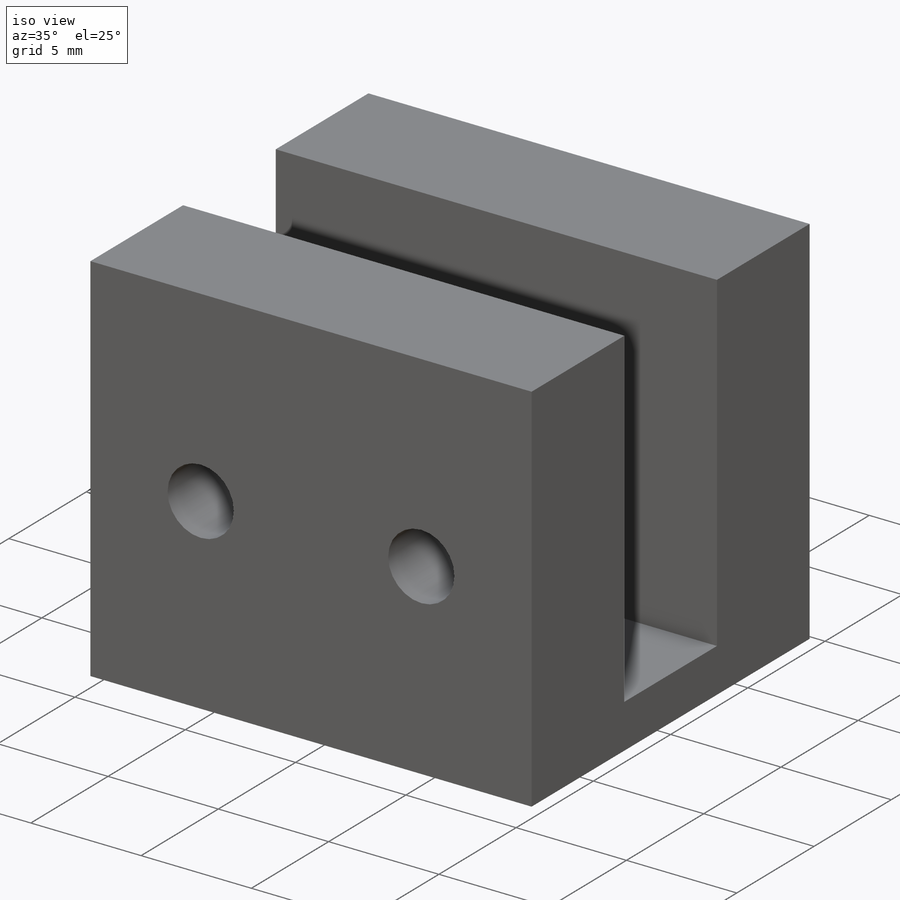
[diagram: iso view]
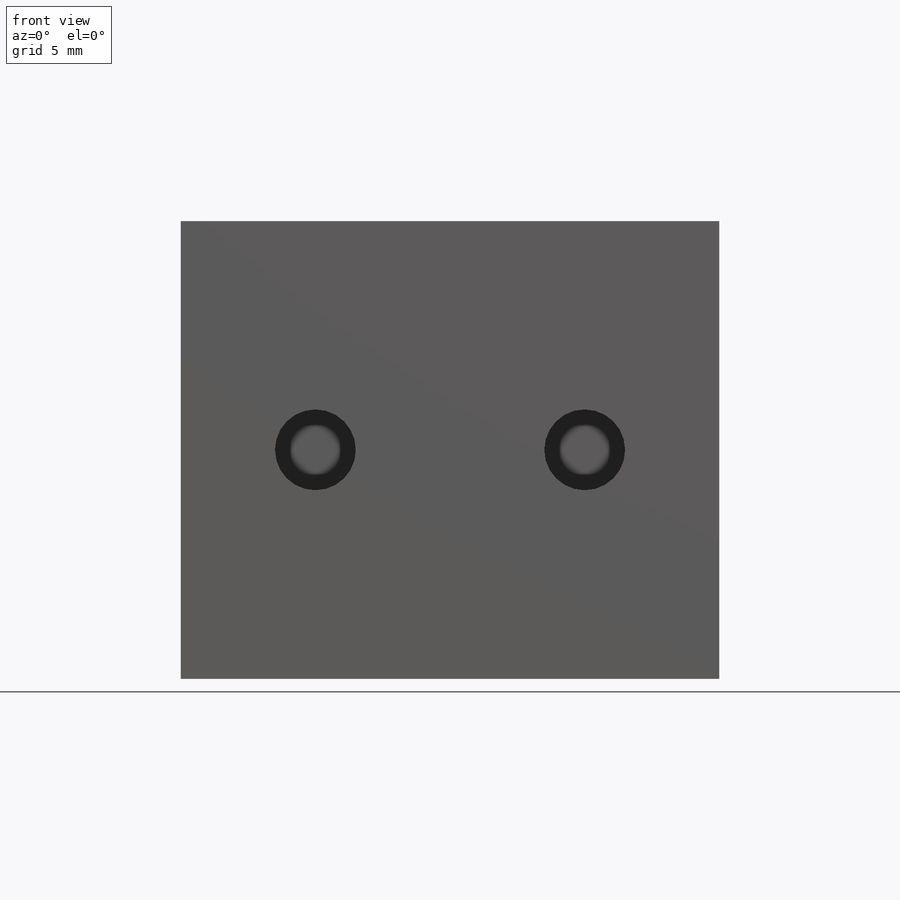
[diagram: front view]
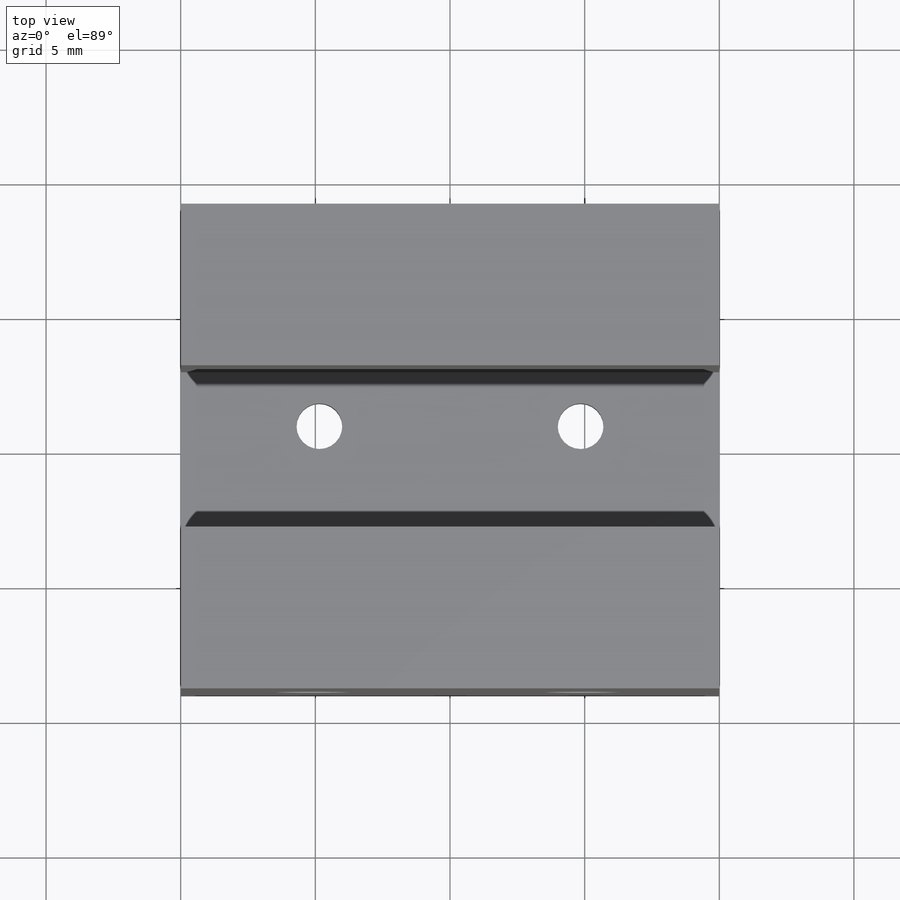
[diagram: top view]
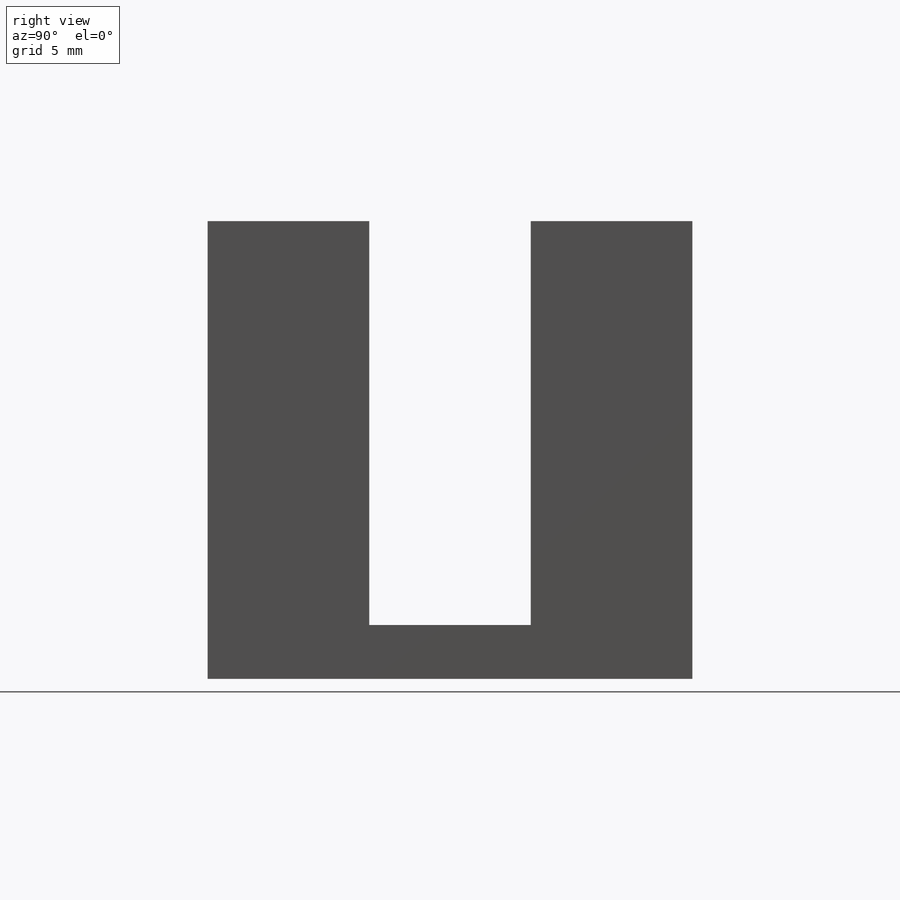
[diagram: right view]
SOLIDWORKS PART (.sldprt)
format: sldprt  version: not decoded by parser v0  size: 191,488 bytes
history: native  units: mm
features: sketch x5, plane x3, extrude x3, cut_extrude x2, material x1 (+10 scaffold rows collapsed)
feature tree (24):
  scaffold x10  (default folders/planes/origin — collapsed)
  material  "Matériau <non spécifié>"
  plane  "Plan de face"
  plane  "Plan de dessus"
  plane  "Plan de droite"
  sketch  "Esquisse1"  dims[D1=6.0mm D2=6.0mm D3=6.0mm D4=20.0mm]
  extrude  "Boss.-Extru.1"  Depth=2mm
  extrude  "Boss.-Extru.2"  [1 undecoded]
  sketch  "Esquisse1<4>"  dims[D1=17.0mm]
  extrude  "Boss.-Extru.3"  [1 undecoded]
  sketch  "Esquisse1<5>"  dims[D1=17.0mm]
  sketch  "Esquisse2"  dims[D1=3.0mm D2=5.0mm D3=5.0mm]
  cut_extrude  "Enlèv. mat.-Extru.1"  [1 undecoded]
  sketch  "Esquisse3"  dims[c1.D2=1.7mm c1.D1=9.7mm c1.D3=8.0mm c1.D4=5.0mm c2.D3=8.0mm c2.D4=1.0mm]
  cut_extrude  "Enlèv. mat.-Extru.2"  [1 undecoded]
decode coverage: 6 of 10 modeling features carry decoded parameters
note: 4 parameter values undecoded
summary: no parameter record found for 4 features
note: suppression state not decoded; provenance and decode notes live in map.json
